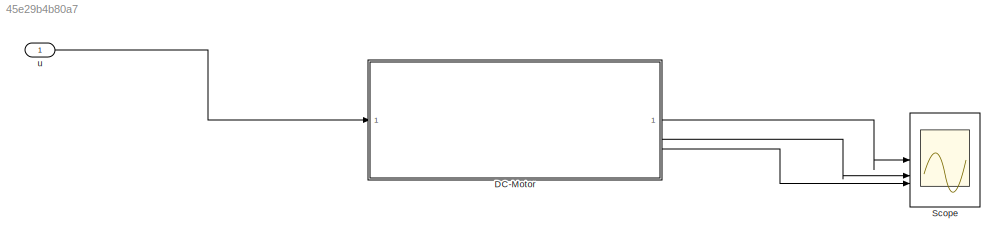
MODEL slx_45e29b4b80a7
KIND model
CONFIG AbsTol = auto
CONFIG EnableMultiTasking = off
CONFIG FixedStep = auto
CONFIG MaxStep = auto
CONFIG MinStep = auto
CONFIG RelTol = 1e-3
CONFIG SampleTimeConstraint = Unconstrained
CONFIG SolverName = VariableStepAuto
CONFIG StartTime = 0.0
CONFIG StopTime = 30
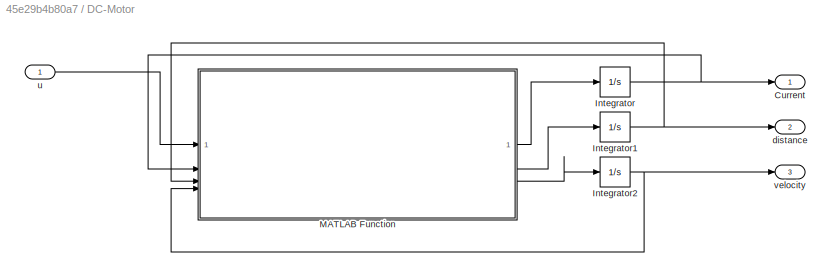
BLOCK [SubSystem] DC-Motor
BLOCK [Outport] DC-Motor/Current
BLOCK [Integrator] DC-Motor/Integrator
  InitialCondition = i0
BLOCK [Integrator] DC-Motor/Integrator1
  InitialCondition = x0
BLOCK [Integrator] DC-Motor/Integrator2
  InitialCondition = x_dot0
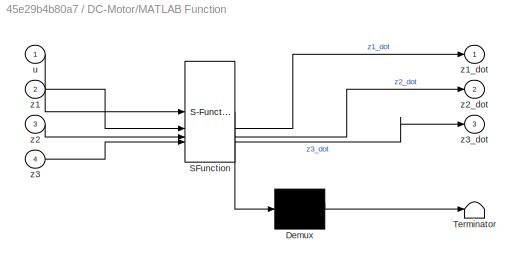
BLOCK [SubSystem] DC-Motor/MATLAB Function
  ErrorFcn = Stateflow.Translate.translate
  PermitHierarchicalResolution = ExplicitOnly
  SFBlockType = MATLAB Function
  TreatAsAtomicUnit = on
BLOCK [Demux] DC-Motor/MATLAB Function/ Demux 
  Outputs = 1
BLOCK [S-Function] DC-Motor/MATLAB Function/ SFunction 
  EnableBusSupport = on
  FunctionName = sf_sfun
  Parameters = L,R,d,k_M,m
  PortCounts = [4 4]
  SFcnIsStateOwnerBlock = off
  SFunctionDeploymentMode = off
  Tag = Stateflow S-Function 2
BLOCK [Terminator] DC-Motor/MATLAB Function/ Terminator 
BLOCK [Inport] DC-Motor/MATLAB Function/u
BLOCK [Inport] DC-Motor/MATLAB Function/z1
  Port = 2
BLOCK [Outport] DC-Motor/MATLAB Function/z1_dot
BLOCK [Inport] DC-Motor/MATLAB Function/z2
  Port = 3
BLOCK [Outport] DC-Motor/MATLAB Function/z2_dot
  Port = 2
BLOCK [Inport] DC-Motor/MATLAB Function/z3
  Port = 4
BLOCK [Outport] DC-Motor/MATLAB Function/z3_dot
  Port = 3
BLOCK [Outport] DC-Motor/distance
  Port = 2
BLOCK [Inport] DC-Motor/u
BLOCK [Outport] DC-Motor/velocity
  Port = 3
BLOCK [Scope] Scope
  Floating = off
  NumInputPorts = 3
  ScopeSpecificationString = Simulink.scopes.TimeScopeBlockCfg('CurrentConfiguration', extmgr.ConfigurationSet(extmgr.Configuration('Core','General UI',true),extmgr.Configuration('Core','Source UI',true),extmgr.Configuration('Sources','WiredSimulink',true),extmgr.Configuration('Visuals','Time Domain',true,'SerializedDisplays',{struct('MinYLimReal','-3.71826','MaxYLimReal','11.52425','YLabelReal','','MinYLimMag','0.00000','Max...<+2882ch>
BLOCK [Inport] u
NET DC-Motor/Integrator1:1 -> DC-Motor/MATLAB Function:3, DC-Motor/distance:1
NET DC-Motor/Integrator2:1 -> DC-Motor/MATLAB Function:4, DC-Motor/velocity:1
NET DC-Motor/Integrator:1 -> DC-Motor/Current:1, DC-Motor/MATLAB Function:2
LINE DC-Motor/MATLAB Function:1 -> DC-Motor/Integrator:1
LINE DC-Motor/MATLAB Function:2 -> DC-Motor/Integrator1:1
LINE DC-Motor/MATLAB Function:3 -> DC-Motor/Integrator2:1
LINE DC-Motor/u:1 -> DC-Motor/MATLAB Function:1
LINE DC-Motor:1 -> Scope:1
LINE DC-Motor:2 -> Scope:2
LINE DC-Motor:3 -> Scope:3
LINE u:1 -> DC-Motor:1
note: NET lines group one-source signal fan-out (src -> all destinations, sorted); 1:1 wires keep LINE
CHART DC-Motor/MATLAB Function states=1 transitions=1
  STATE_LABEL 'eML_blk_kernel()'
  STATE_LABEL 'SCRIPT:\nfunction [z1_dot,z2_dot,z3_dot] = fcn(u,z1,z2,z3,k_M, L, R, m, d)\n    %params\n    % R=1;\n    % L=1e-3;\n    % k_M=1;\n    % m=1;\n    % d=1;\n\n    %DGL\n    z1_dot = -(R/L)*z1-(k_M/L)*z2+(1/L)*u;\n    z2_dot = z3;\n    z3_dot = (k_M/m)*z1-(d/m)*z3;\n\n    \n\nend\n'
CHART  states=0 transitions=0
